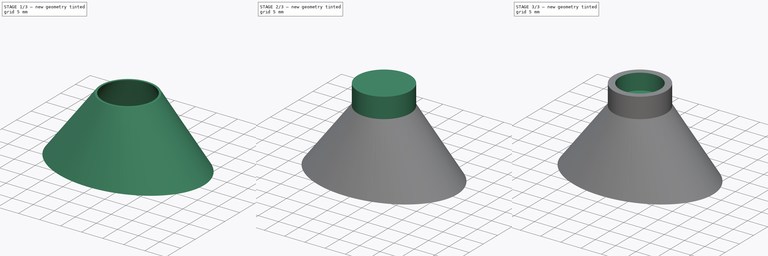
[diagram: build sequence overview — one tinted view per stage of 3, left to right]
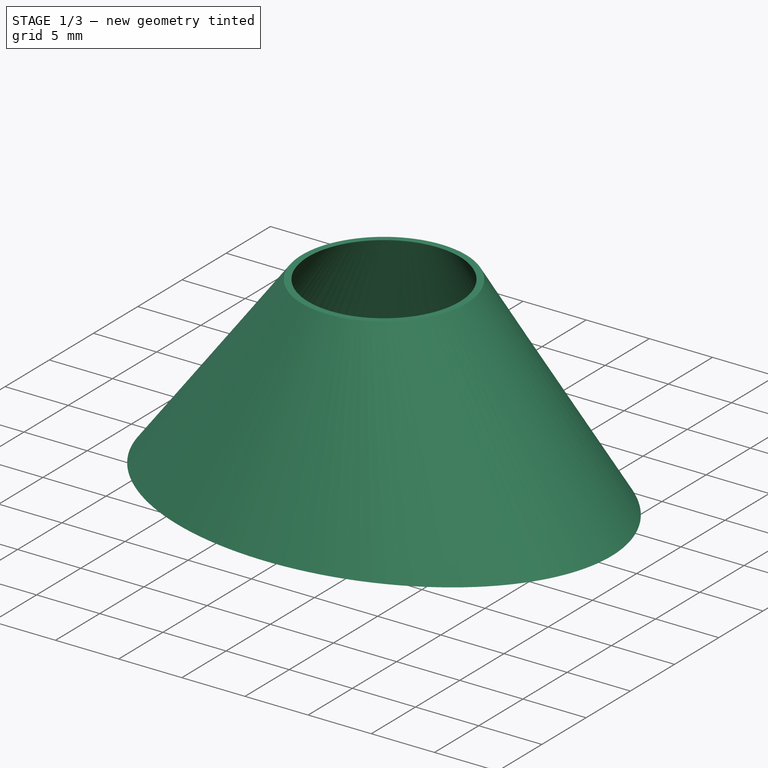
[diagram: stage 1 of 3 — iso view after this stage's code; geometry added in this stage tinted green]
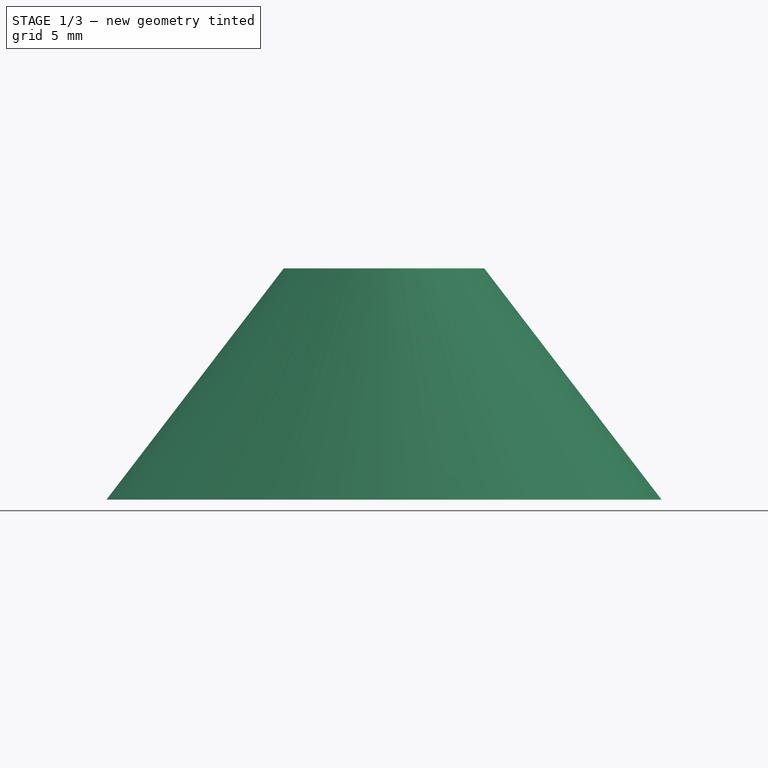
[diagram: stage 1 of 3 — front view after this stage's code; geometry added in this stage tinted green]
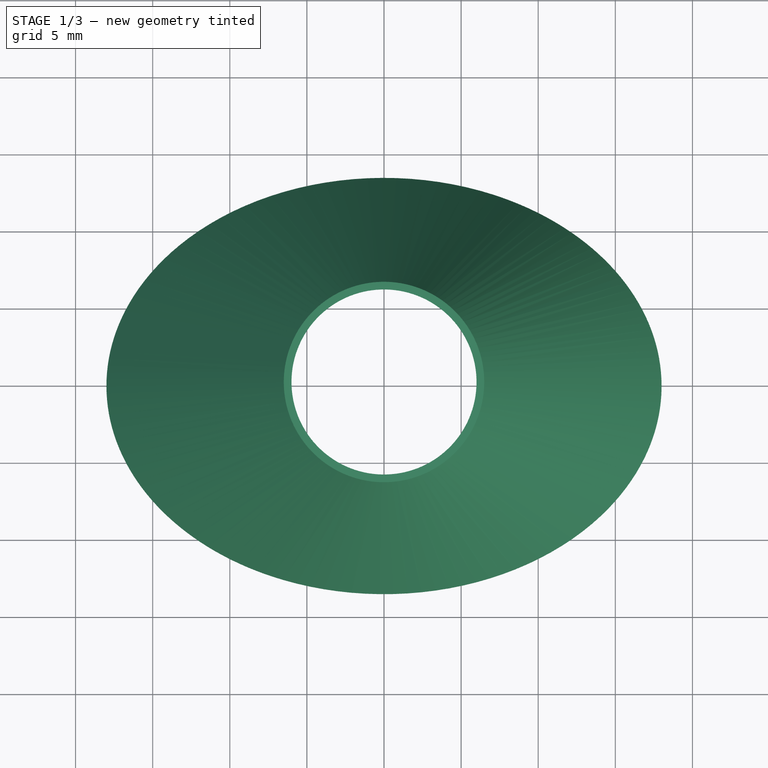
[diagram: stage 1 of 3 — top view after this stage's code; geometry added in this stage tinted green]
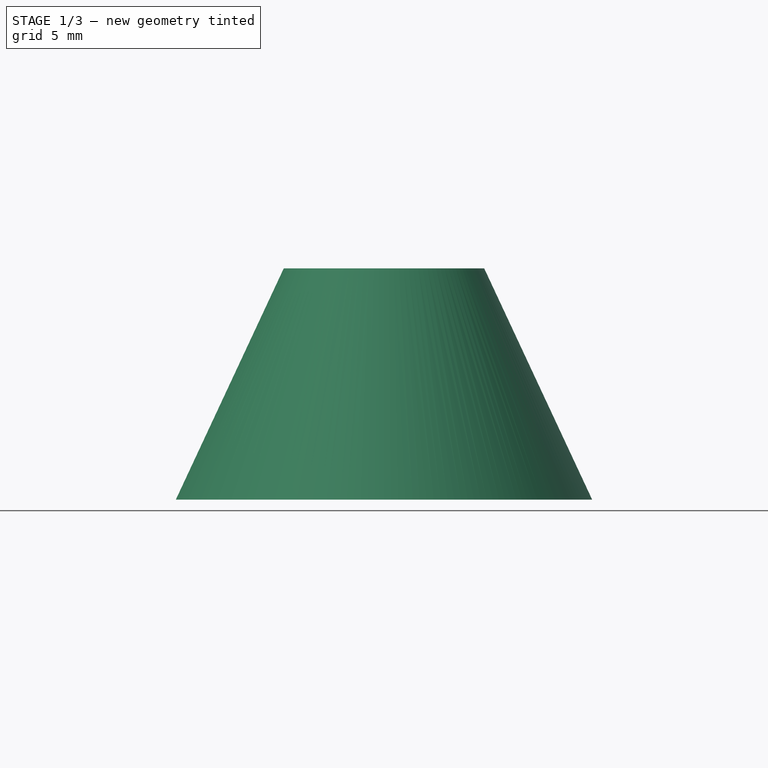
[diagram: stage 1 of 3 — right view after this stage's code; geometry added in this stage tinted green]
FCSTD DOCUMENT  (FreeCAD 0.20R26720 (Git))
Label: trail_single_lamp_reflector
License: All rights reserved
LicenseURL: http://en.wikipedia.org/wiki/All_rights_reserved
objects: Sketcher::SketchObject×5, PartDesign::Pad×2, PartDesign::Body×2, PartDesign::ShapeBinder×1, PartDesign::AdditiveLoft×1, PartDesign::Pocket×1, PartDesign::Hole×1
note: 18 computed .brp shape members not serialized (recipe doc carries the construction recipe); baked Part::Feature solids carry a one-line shape summary decoded from their .brp

FEATURE [Sketcher::SketchObject] Sketch
  FullyConstrained = true
  MapMode = 5
  Support = -> [XY_Plane]
  sketch-geometry (9):
    g0: LineSegment StartX=-22 StartY=17 StartZ=0 EndX=22 EndY=17 EndZ=0
    g1: LineSegment StartX=22 StartY=17 StartZ=0 EndX=22 EndY=-17 EndZ=0
    g2: LineSegment StartX=22 StartY=-17 StartZ=0 EndX=-22 EndY=-17 EndZ=0
    g3: LineSegment StartX=-22 StartY=-17 StartZ=0 EndX=-22 EndY=17 EndZ=0
    g4: Ellipse CenterX=0 CenterY=0 CenterZ=0 NormalX=0 NormalY=0 NormalZ=1 MajorRadius=17.5 MinorRadius=13 AngleXU=0
    g5: LineSegment StartX=17.5 StartY=0 StartZ=0 EndX=-17.5 EndY=0 EndZ=0
    g6: LineSegment StartX=0 StartY=13 StartZ=0 EndX=0 EndY=-13 EndZ=0
    g7: GeomPoint X=11.7154 Y=0 Z=0
    g8: GeomPoint X=-11.7154 Y=0 Z=0
  constraints (15):
    c: Coincident(g0,g1)
    c: Coincident(g1,g2)
    c: Coincident(g2,g3)
    c: Coincident(g3,g0)
    c: Horizontal(g2)
    c: Vertical(g1)
    c: Symmetric(g0,g0,g-2)
    c: Symmetric(g0,g2,g-1)
    c: Distance(g0) = 44
    c: Distance(g3) = 34
    c: InternalAlignment(g5-g8 -> g4) x4
    c: Coincident(g4,g-1)
    c: Distance(g6) = 26
    c: Distance(g5) = 35
    c: PointOnObject(g8,g-1)
FEATURE [PartDesign::Pad] Pad
  Direction = (0,0,1)
  Length = 0.4
  Length2 = 100
  Profile = -> Sketch
  ReferenceAxis = -> Sketch [N_Axis]
  Type = 0
FEATURE [PartDesign::Body] Body  label="Baseplate"
  Group = -> [Sketch,Pad]
  Origin = -> Origin
  Tip = -> Pad
FEATURE [PartDesign::ShapeBinder] ShapeBinder
  Placement = pos=(0,0,0.4) rot=(0,0,1;0rad)
  Support = -> [Pad]
  TraceSupport = false
FEATURE [Sketcher::SketchObject] Sketch001
  FullyConstrained = true
  MapMode = 5
  Placement = pos=(0,0,0.4) rot=(0,0,1;0rad)
  Support = -> [ShapeBinder]
  sketch-geometry (10):
    g0: Ellipse CenterX=0 CenterY=0 CenterZ=0 NormalX=0 NormalY=0 NormalZ=1 MajorRadius=18 MinorRadius=13.5 AngleXU=0
    g1: LineSegment StartX=18 StartY=0 StartZ=0 EndX=-18 EndY=0 EndZ=0
    g2: LineSegment StartX=0 StartY=13.5 StartZ=0 EndX=0 EndY=-13.5 EndZ=0
    g3: GeomPoint X=11.9059 Y=0 Z=0
    g4: GeomPoint X=-11.9059 Y=0 Z=0
    g5: Ellipse CenterX=0 CenterY=0 CenterZ=0 NormalX=0 NormalY=0 NormalZ=1 MajorRadius=17.5 MinorRadius=13 AngleXU=0
    g6: LineSegment StartX=17.5 StartY=0 StartZ=0 EndX=-17.5 EndY=0 EndZ=0
    g7: LineSegment StartX=0 StartY=13 StartZ=0 EndX=0 EndY=-13 EndZ=0
    g8: GeomPoint X=11.7154 Y=0 Z=0
    g9: GeomPoint X=-11.7154 Y=0 Z=0
  constraints (10):
    c: InternalAlignment(g1-g4 -> g0) x4
    c: Coincident(g0,g-1)
    c: Distance(g2) = 27
    c: Distance(g1) = 36
    c: PointOnObject(g4,g-1)
    c: InternalAlignment(g6-g9 -> g5) x4
    c: Coincident(g5,g0)
    c: Distance(g6) = 35
    c: Distance(g7) = 26
    c: PointOnObject(g9,g-1)
FEATURE [Sketcher::SketchObject] Sketch002
  AttachmentOffset = pos=(0,0,15) rot=(0,0,1;0rad)
  FullyConstrained = true
  MapMode = 5
  Placement = pos=(0,0,15.4) rot=(0,0,1;0rad)
  Support = -> [ShapeBinder]
  sketch-geometry (2):
    g0: Circle CenterX=0 CenterY=0 CenterZ=0 NormalX=0 NormalY=0 NormalZ=1 AngleXU=0 Radius=6.5
    g1: Circle CenterX=0 CenterY=0 CenterZ=0 NormalX=0 NormalY=0 NormalZ=1 AngleXU=0 Radius=6
  constraints (4):
    c: Coincident(g0,g-1)
    c: Diameter(g0) = 13
    c: Coincident(g1,g0)
    c: Diameter(g1) = 12
FEATURE [PartDesign::AdditiveLoft] AdditiveLoft
  Closed = false
  Placement = pos=(0,0,0.4) rot=(0,0,1;0rad)
  Profile = -> Sketch001
  Ruled = false
  Sections = -> [Sketch002]
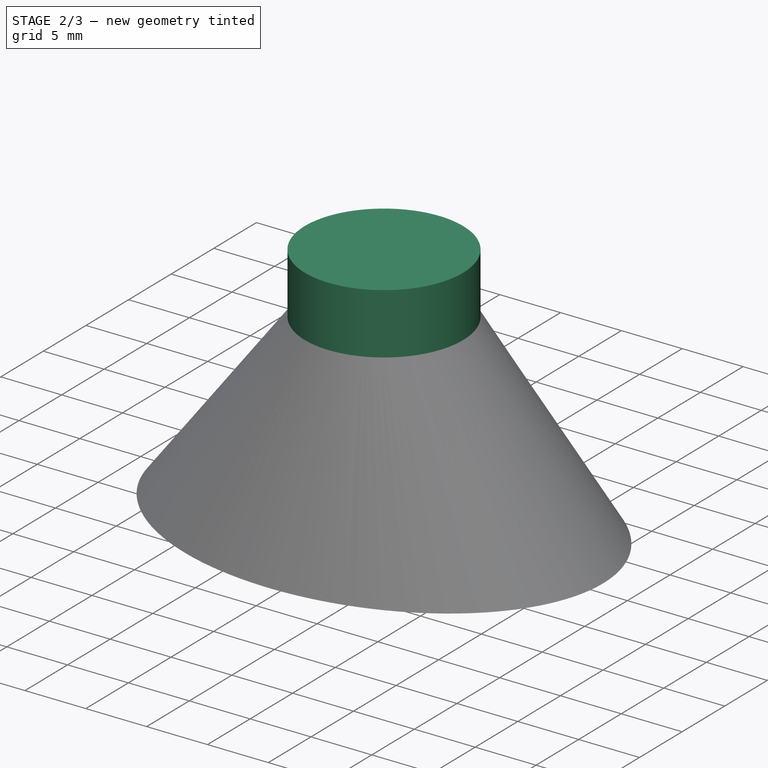
[diagram: stage 2 of 3 — iso view after this stage's code; geometry added in this stage tinted green]
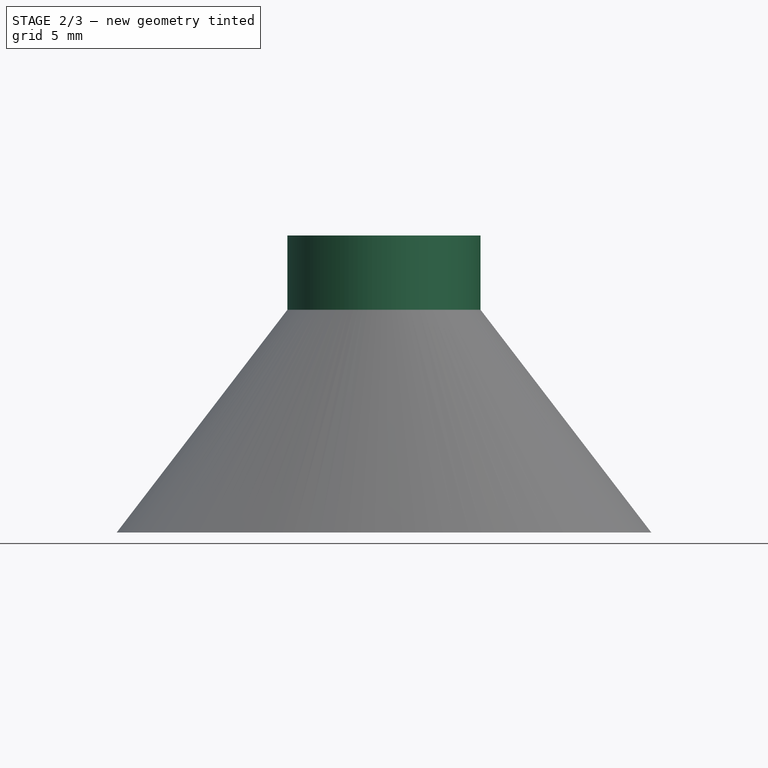
[diagram: stage 2 of 3 — front view after this stage's code; geometry added in this stage tinted green]
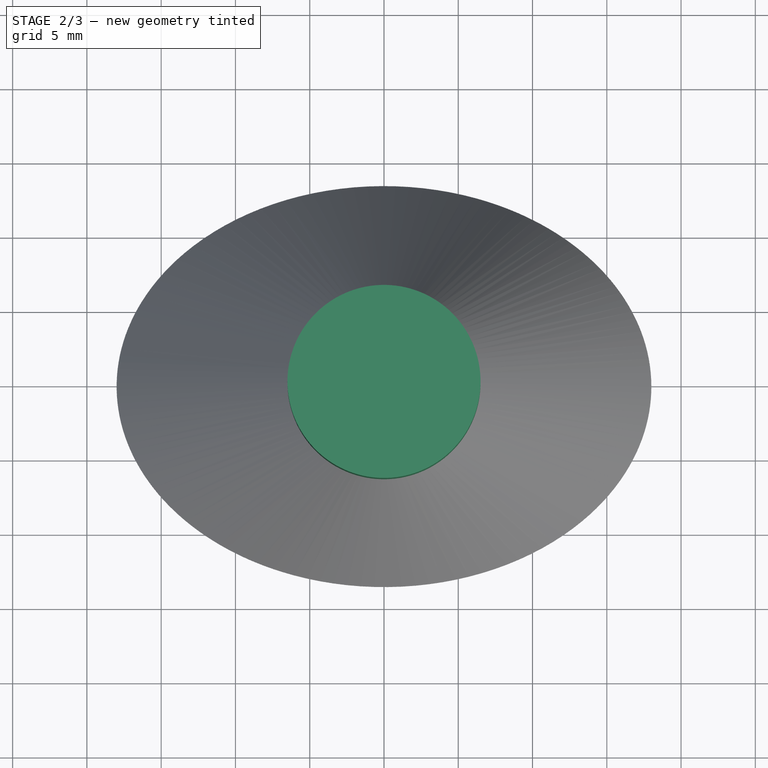
[diagram: stage 2 of 3 — top view after this stage's code; geometry added in this stage tinted green]
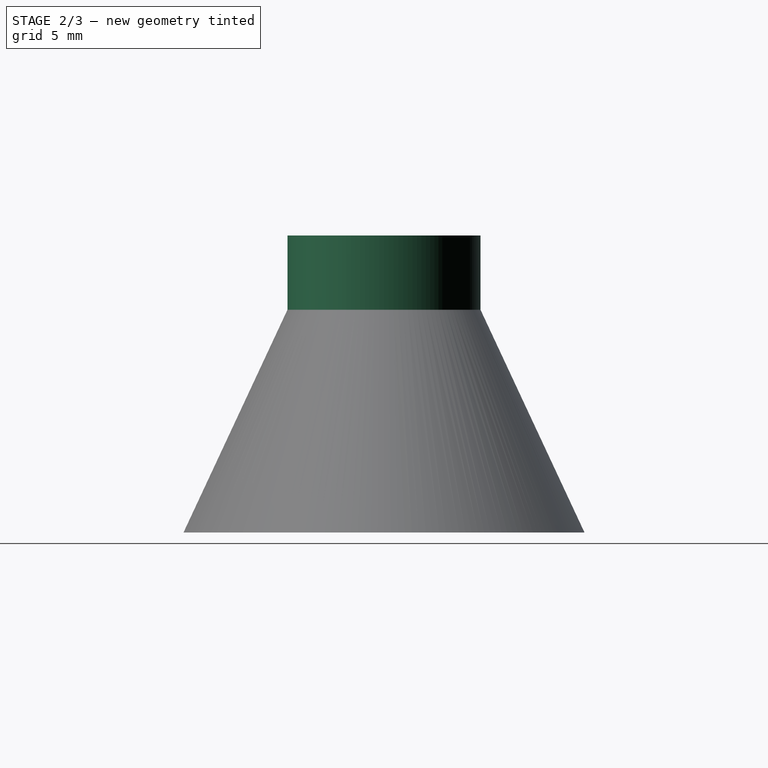
[diagram: stage 2 of 3 — right view after this stage's code; geometry added in this stage tinted green]
FEATURE [Sketcher::SketchObject] Sketch003
  FullyConstrained = true
  MapMode = 5
  Placement = pos=(0,0,15.4) rot=(0,0,1;0rad)
  Support = -> [AdditiveLoft]
  sketch-geometry (1):
    g0: Circle CenterX=0 CenterY=0 CenterZ=0 NormalX=0 NormalY=0 NormalZ=1 AngleXU=0 Radius=6.5
  constraints (2):
    c: Coincident(g0,g-1)
    c: Diameter(g0) = 13
FEATURE [PartDesign::Pad] Pad001
  BaseFeature = -> AdditiveLoft
  Direction = (0,0,1)
  Length = 5
  Length2 = 100
  Placement = pos=(0,0,0.4) rot=(0,0,1;0rad)
  Profile = -> Sketch003
  ReferenceAxis = -> Sketch003 [N_Axis]
  Type = 0
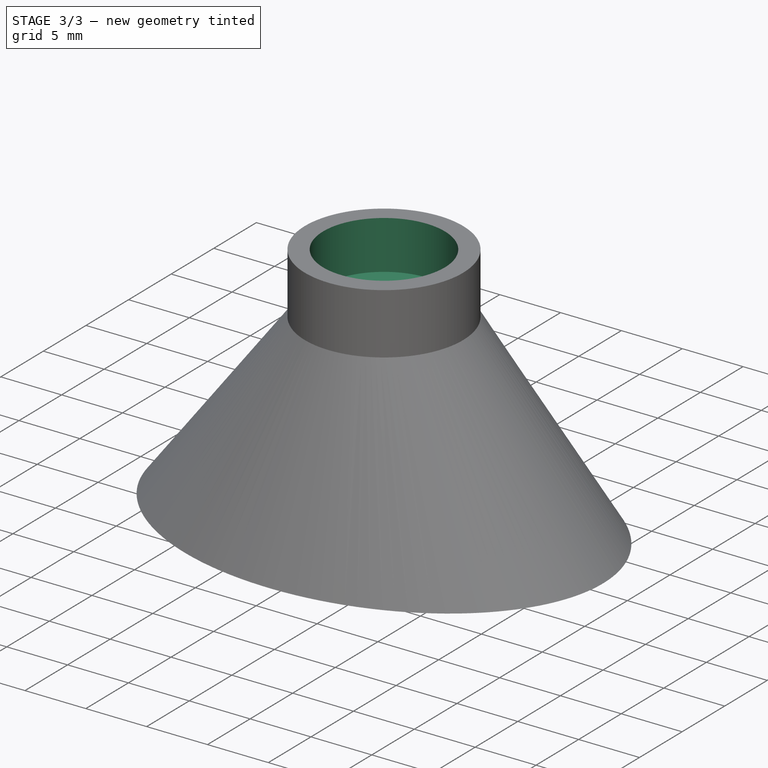
[diagram: stage 3 of 3 — iso view after this stage's code; geometry added in this stage tinted green]
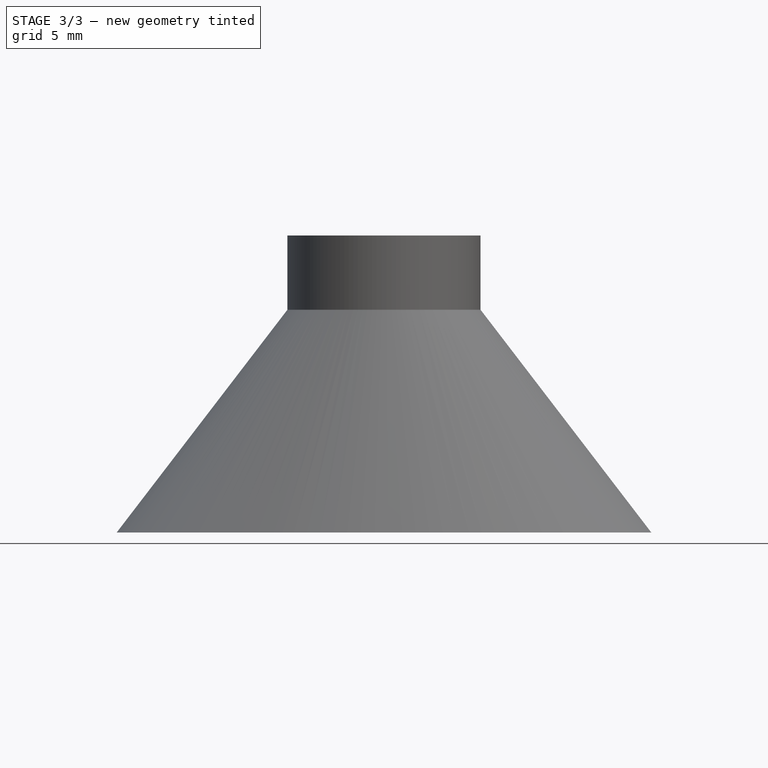
[diagram: stage 3 of 3 — front view after this stage's code; geometry added in this stage tinted green]
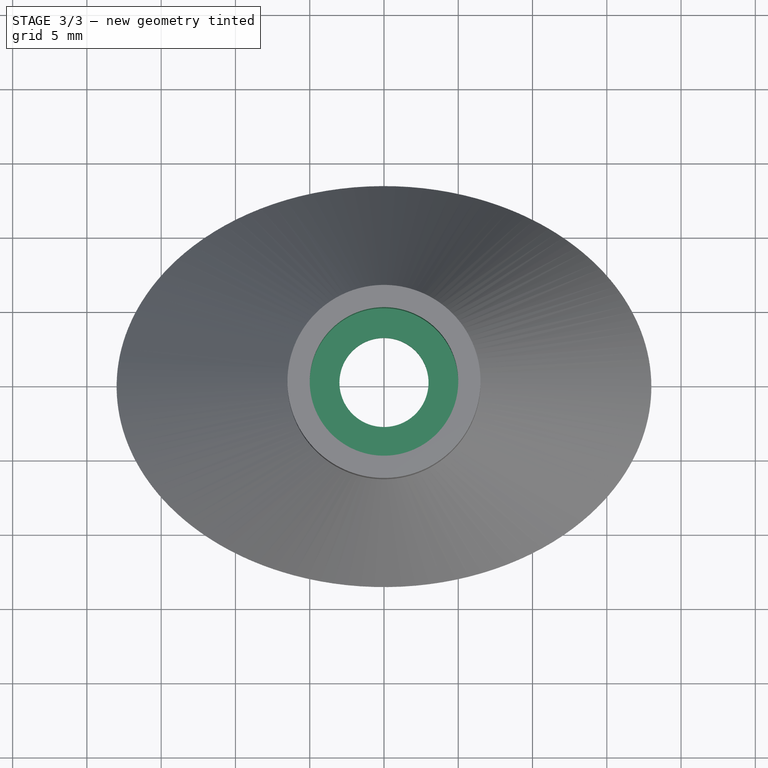
[diagram: stage 3 of 3 — top view after this stage's code; geometry added in this stage tinted green]
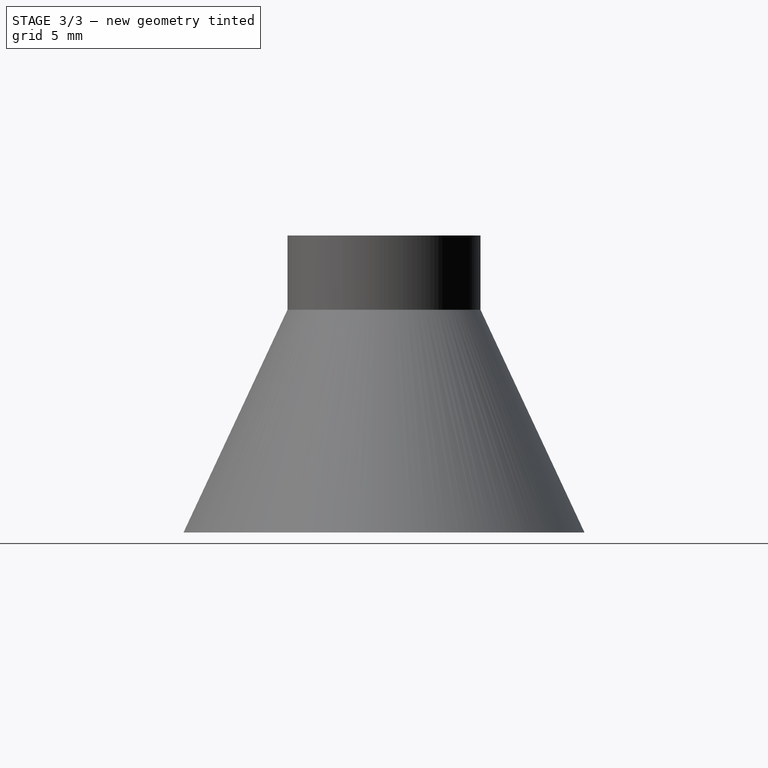
[diagram: stage 3 of 3 — right view after this stage's code; geometry added in this stage tinted green]
FEATURE [Sketcher::SketchObject] Sketch004
  FullyConstrained = true
  MapMode = 5
  Placement = pos=(0,0,20.4) rot=(0,0,1;0rad)
  Support = -> [Pad001]
  sketch-geometry (1):
    g0: Circle CenterX=0 CenterY=0 CenterZ=0 NormalX=0 NormalY=0 NormalZ=1 AngleXU=0 Radius=5
  constraints (2):
    c: Coincident(g0,g-1)
    c: Diameter(g0) = 10
FEATURE [PartDesign::Pocket] Pocket
  BaseFeature = -> Pad001
  Direction = (0,0,-1)
  Length = 4
  Length2 = 100
  Placement = pos=(0,0,0.4) rot=(0,0,1;0rad)
  Profile = -> Sketch004
  ReferenceAxis = -> Sketch004 [N_Axis]
  Type = 0
FEATURE [PartDesign::Hole] Hole
  BaseFeature = -> Pocket
  CustomThreadClearance = 0
  Depth = 25
  DepthType = 0
  Diameter = 6
  DrillForDepth = false
  DrillPoint = 1
  DrillPointAngle = 118
  HoleCutCountersinkAngle = 90
  HoleCutCustomValues = false
  HoleCutDepth = 0
  HoleCutDiameter = 6.1
  HoleCutType = 0
  ModelThread = false
  Placement = pos=(0,0,0.4) rot=(0,0,1;0rad)
  Profile = -> Pocket [Face8]
  Tapered = false
  TaperedAngle = 90
  ThreadClass = 0
  ThreadDepth = 25
  ThreadDepthType = 0
  ThreadDirection = 0
  ThreadFit = 0
  ThreadSize = 0
  ThreadType = 0
  Threaded = false
  UseCustomThreadClearance = false
FEATURE [PartDesign::Body] Body001  label="Reflector"
  Group = -> [ShapeBinder,Sketch001,Sketch002,AdditiveLoft,Sketch003,Pad001,Sketch004,Pocket,Hole]
  Origin = -> Origin001
  Tip = -> Hole
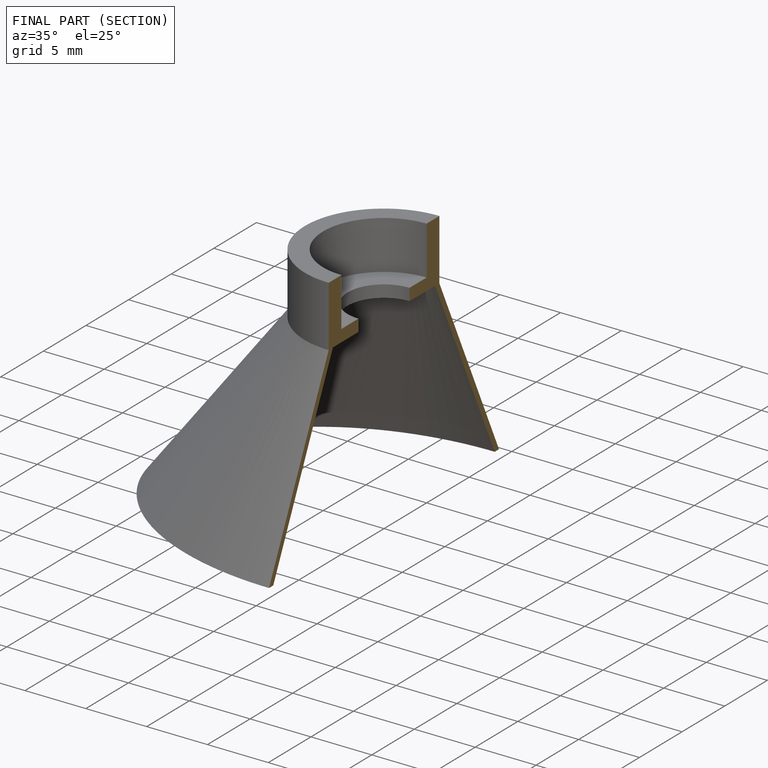
[diagram: finished part — half-section view (interior)]
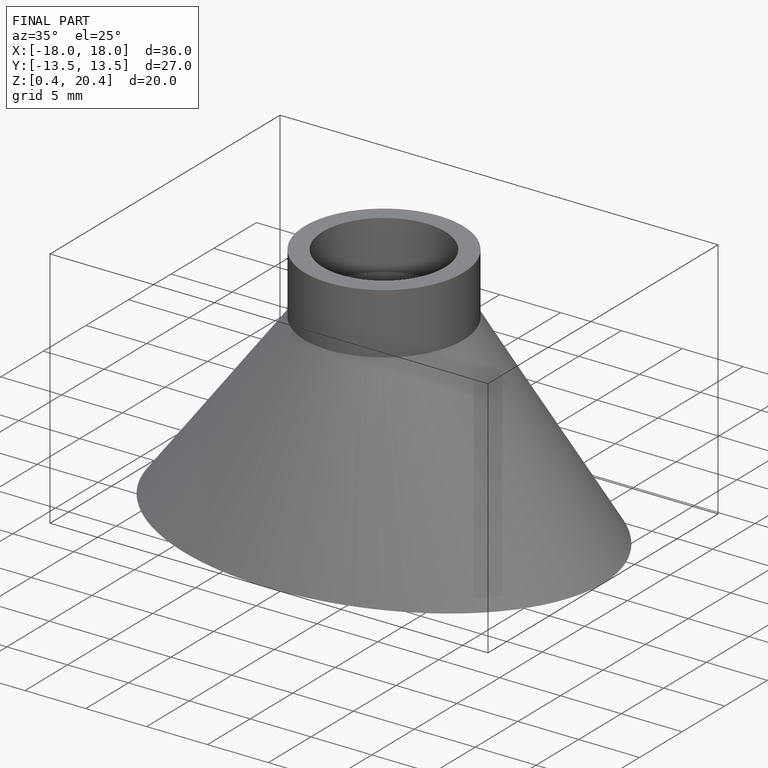
[diagram: finished part — iso view with bounding-box wireframe]
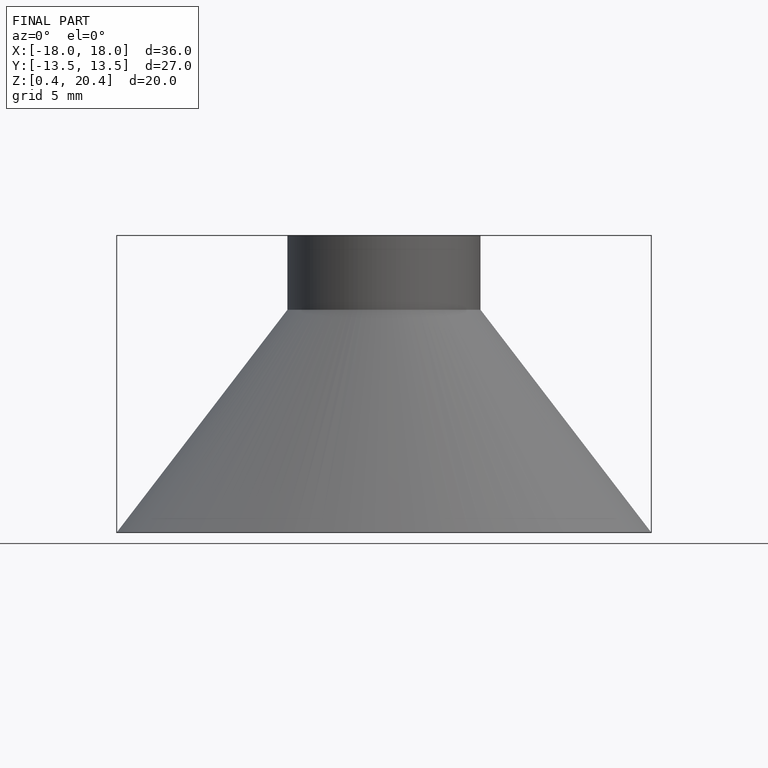
[diagram: finished part — front view with bounding-box wireframe]
